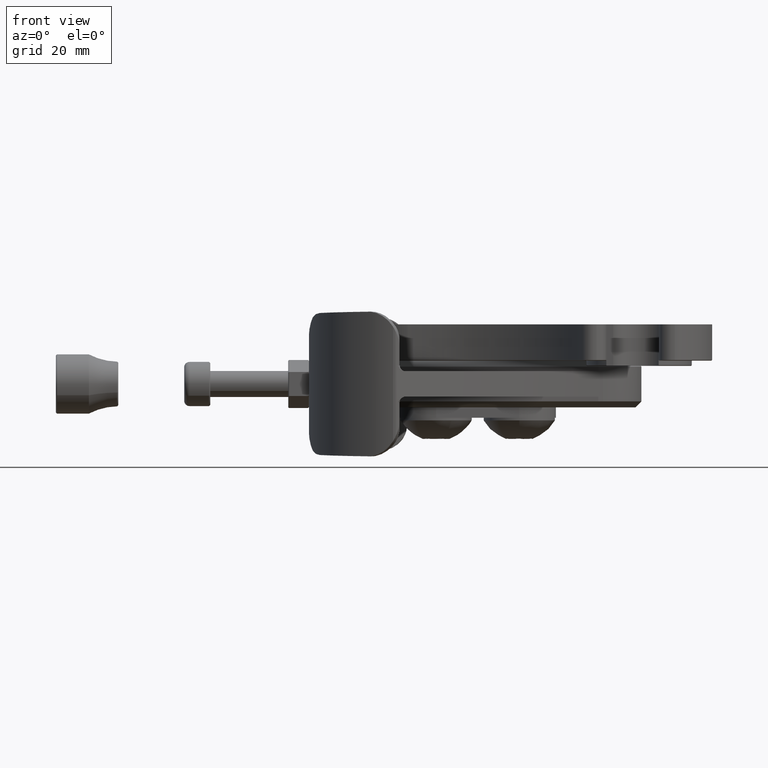
[diagram: clean part render]
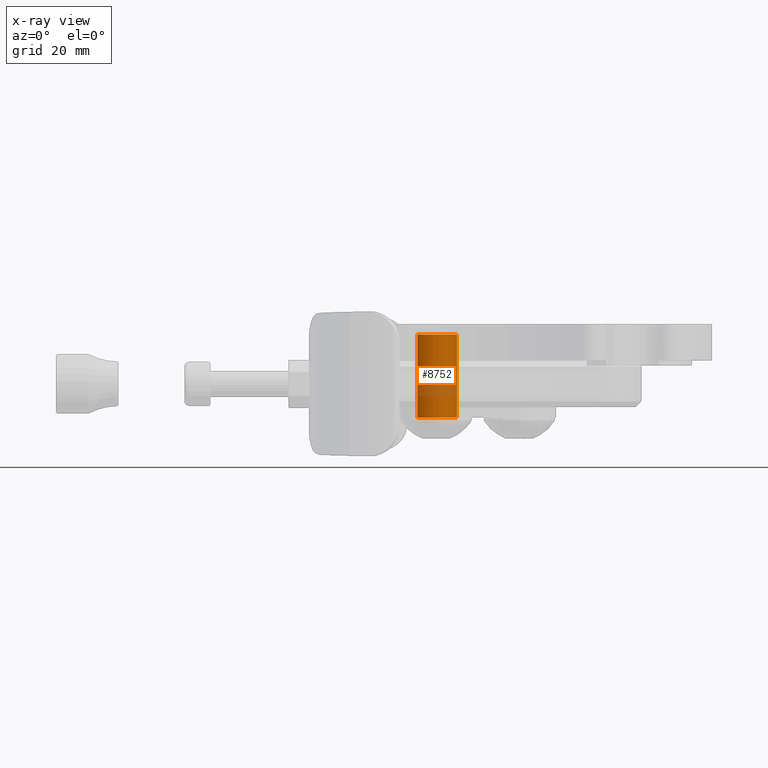
[diagram: x-ray — body ghosted, one internal face saturated and labeled with its STEP entity id]
A machine part, front view, then the same camera in x-ray: the body is ghosted and one INTERNAL B-rep face — a face not visible from any outside direction — is saturated and labeled: STEP entity #8752.
In plain terms, the highlighted cylindrical surface (edge-blend (fillet) strip) has radius 4 mm, axis along (-0, 0, -1).
Its self-contained STEP definition (entity closure, byte-faithful):
#244 = EDGE_LOOP ( 'NONE', ( #2495, #2496, #2497, #2498 ) ) ;
#482 = VERTEX_POINT ( 'NONE', #7830 ) ;
#485 = VERTEX_POINT ( 'NONE', #7833 ) ;
#486 = VERTEX_POINT ( 'NONE', #7834 ) ;
#487 = VERTEX_POINT ( 'NONE', #7835 ) ;
#1470 = EDGE_CURVE ( 'NONE', #485, #482, #3452, .T. ) ;
#1471 = EDGE_CURVE ( 'NONE', #482, #487, #3447, .T. ) ;
#1472 = EDGE_CURVE ( 'NONE', #486, #487, #3455, .T. ) ;
#1473 = EDGE_CURVE ( 'NONE', #485, #486, #3454, .T. ) ;
#2495 = ORIENTED_EDGE ( 'NONE', *, *, #1470, .T. ) ;
#2496 = ORIENTED_EDGE ( 'NONE', *, *, #1471, .T. ) ;
#2497 = ORIENTED_EDGE ( 'NONE', *, *, #1472, .F. ) ;
#2498 = ORIENTED_EDGE ( 'NONE', *, *, #1473, .F. ) ;
#3447 = LINE ( 'NONE', #8359, #3456 ) ;
#3452 = CIRCLE ( 'NONE', #7344, 0.1574803149606299200 ) ;
#3454 = LINE ( 'NONE', #7537, #3459 ) ;
#3455 = CIRCLE ( 'NONE', #7345, 0.1574803149606298600 ) ;
#3456 = VECTOR ( 'NONE', #8354, 39.37007874015748100 ) ;
#3459 = VECTOR ( 'NONE', #7541, 39.37007874015748100 ) ;
#4705 = FACE_OUTER_BOUND ( 'NONE', #244, .T. ) ;
#4717 = CYLINDRICAL_SURFACE ( 'NONE', #4856, 0.1574803149606298900 ) ;
#4856 = AXIS2_PLACEMENT_3D ( 'NONE', #5810, #5811, #5809 ) ;
#5809 = DIRECTION ( 'NONE',  ( 0.0000000000000000000, 0.0000000000000000000, 1.000000000000000000 ) ) ;
#5810 = CARTESIAN_POINT ( 'NONE',  ( -0.8070866141732283600, 0.0000000000000000000, 0.0000000000000000000 ) ) ;
#5811 = DIRECTION ( 'NONE',  ( -1.000000000000000000, -0.0000000000000000000, -0.0000000000000000000 ) ) ;
#7344 = AXIS2_PLACEMENT_3D ( 'NONE', #8253, #8244, #7536 ) ;
#7345 = AXIS2_PLACEMENT_3D ( 'NONE', #7538, #7539, #7540 ) ;
#7536 = DIRECTION ( 'NONE',  ( 0.0000000000000000000, 0.0000000000000000000, 1.000000000000000000 ) ) ;
#7537 = CARTESIAN_POINT ( 'NONE',  ( -0.8070866141732283600, 0.0000000000000000000, 0.1574803149606298900 ) ) ;
#7538 = CARTESIAN_POINT ( 'NONE',  ( -0.6299212598425196800, 0.0000000000000000000, 0.0000000000000000000 ) ) ;
#7539 = DIRECTION ( 'NONE',  ( -1.000000000000000000, -0.0000000000000000000, -0.0000000000000000000 ) ) ;
#7540 = DIRECTION ( 'NONE',  ( 0.0000000000000000000, 0.0000000000000000000, 1.000000000000000000 ) ) ;
#7541 = DIRECTION ( 'NONE',  ( -1.000000000000000000, -0.0000000000000000000, -0.0000000000000000000 ) ) ;
#7830 = CARTESIAN_POINT ( 'NONE',  ( 0.0000000000000000000, 1.928577636452524600E-017, -0.1574803149606299200 ) ) ;
#7833 = CARTESIAN_POINT ( 'NONE',  ( 0.0000000000000000000, 0.0000000000000000000, 0.1574803149606299200 ) ) ;
#7834 = CARTESIAN_POINT ( 'NONE',  ( -0.6299212598425196800, 0.0000000000000000000, 0.1574803149606298600 ) ) ;
#7835 = CARTESIAN_POINT ( 'NONE',  ( -0.6299212598425196800, 1.928577636452524300E-017, -0.1574803149606298600 ) ) ;
#8244 = DIRECTION ( 'NONE',  ( -1.000000000000000000, -0.0000000000000000000, -0.0000000000000000000 ) ) ;
#8253 = CARTESIAN_POINT ( 'NONE',  ( 0.0000000000000000000, 0.0000000000000000000, 0.0000000000000000000 ) ) ;
#8354 = DIRECTION ( 'NONE',  ( -1.000000000000000000, -0.0000000000000000000, -0.0000000000000000000 ) ) ;
#8359 = CARTESIAN_POINT ( 'NONE',  ( -0.8070866141732283600, 1.928577636452524300E-017, -0.1574803149606298900 ) ) ;
#8752 = ADVANCED_FACE ( 'NONE', ( #4705 ), #4717, .T. ) ;